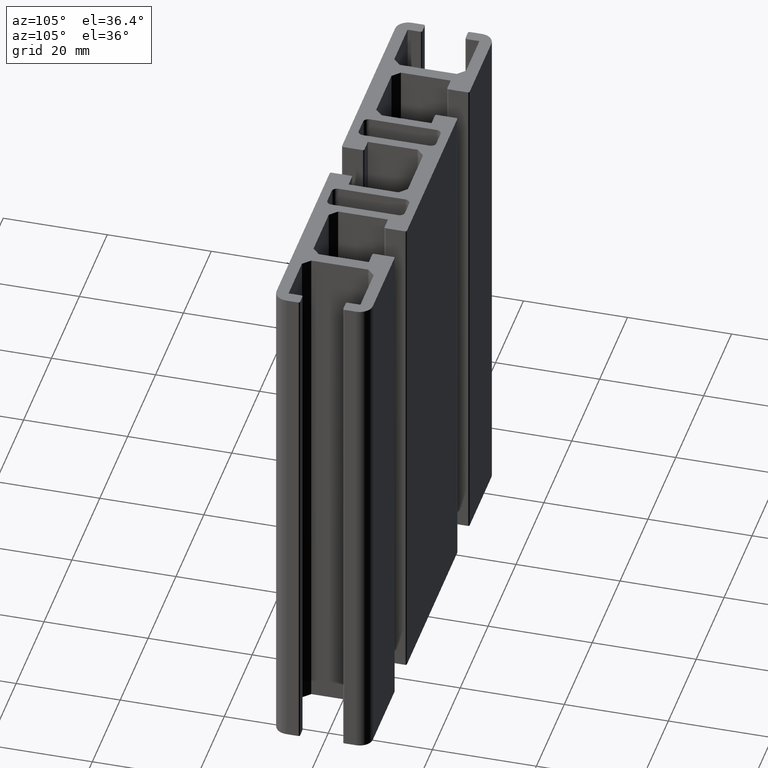
[diagram: clean part render]
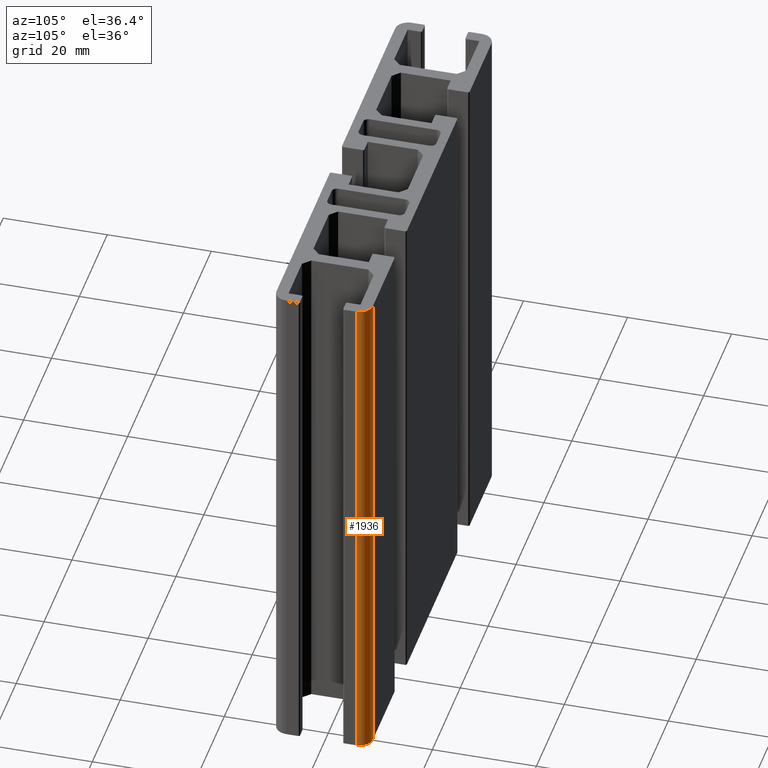
[diagram: same view with one face highlighted and labeled with its STEP entity id]
A machine part, auxiliary view. The second image highlights one B-rep face of the part: STEP entity #1936.
In plain terms, the highlighted cylindrical surface (edge-blend (fillet) strip) has radius 2.5 mm, axis along (0, 0, 1).
Its self-contained STEP definition (entity closure, byte-faithful):
#174=FACE_OUTER_BOUND('',#272,.T.);
#272=EDGE_LOOP('',(#1703,#1704,#1705,#1706));
#472=LINE('',#3149,#690);
#489=LINE('',#3182,#707);
#690=VECTOR('',#2574,100.);
#707=VECTOR('',#2603,100.);
#771=CIRCLE('',#2088,2.50000000000001);
#777=CIRCLE('',#2097,2.50000000000001);
#951=VERTEX_POINT('',#3146);
#952=VERTEX_POINT('',#3148);
#961=VERTEX_POINT('',#3179);
#962=VERTEX_POINT('',#3181);
#1216=EDGE_CURVE('',#951,#952,#472,.T.);
#1233=EDGE_CURVE('',#962,#961,#489,.T.);
#1235=EDGE_CURVE('',#961,#952,#771,.T.);
#1244=EDGE_CURVE('',#962,#951,#777,.T.);
#1703=ORIENTED_EDGE('',*,*,#1235,.T.);
#1704=ORIENTED_EDGE('',*,*,#1216,.F.);
#1705=ORIENTED_EDGE('',*,*,#1244,.F.);
#1706=ORIENTED_EDGE('',*,*,#1233,.T.);
#1843=CYLINDRICAL_SURFACE('',#2096,2.50000000000001);
#1936=ADVANCED_FACE('',(#174),#1843,.T.);
#2088=AXIS2_PLACEMENT_3D('',#3185,#2607,#2608);
#2096=AXIS2_PLACEMENT_3D('',#3199,#2626,#2627);
#2097=AXIS2_PLACEMENT_3D('',#3200,#2628,#2629);
#2574=DIRECTION('',(0.,0.,1.));
#2603=DIRECTION('',(0.,0.,1.));
#2607=DIRECTION('center_axis',(0.,0.,-1.));
#2608=DIRECTION('ref_axis',(-1.,0.,0.));
#2626=DIRECTION('center_axis',(0.,0.,1.));
#2627=DIRECTION('ref_axis',(-1.,0.,0.));
#2628=DIRECTION('center_axis',(0.,0.,-1.));
#2629=DIRECTION('ref_axis',(-1.,0.,0.));
#3146=CARTESIAN_POINT('',(45.,6.74999999999999,0.));
#3148=CARTESIAN_POINT('',(45.,6.74999999999999,100.));
#3149=CARTESIAN_POINT('',(45.,6.74999999999999,0.));
#3179=CARTESIAN_POINT('',(42.5,9.25,100.));
#3181=CARTESIAN_POINT('',(42.5,9.25,0.));
#3182=CARTESIAN_POINT('',(42.5,9.25,0.));
#3185=CARTESIAN_POINT('Origin',(42.5,6.74999999999999,100.));
#3199=CARTESIAN_POINT('Origin',(42.5,6.74999999999999,0.));
#3200=CARTESIAN_POINT('Origin',(42.5,6.74999999999999,0.));